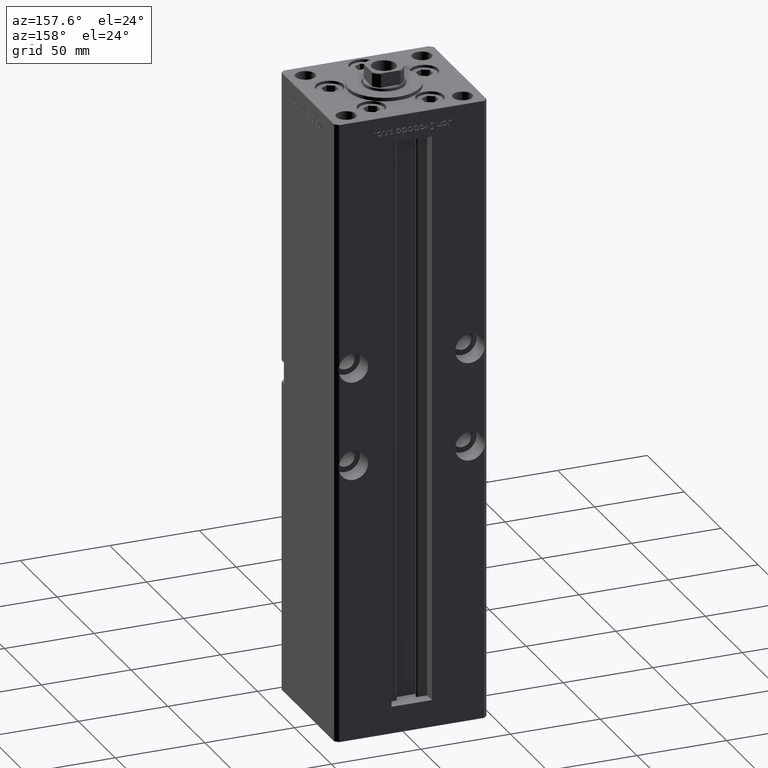
[diagram: clean part render]
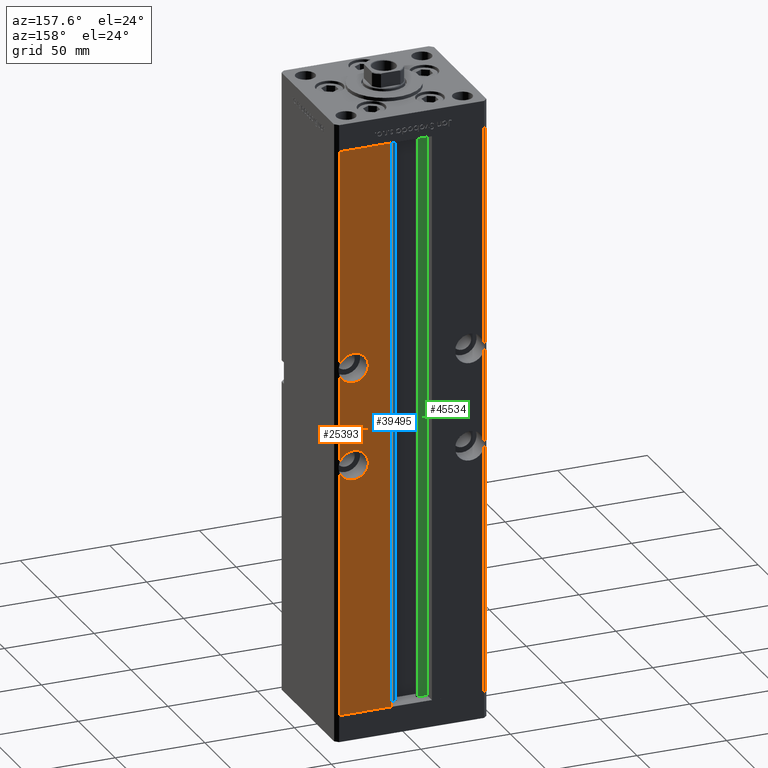
[diagram: same view with three faces highlighted in distinct colors, each labeled with its STEP entity id]
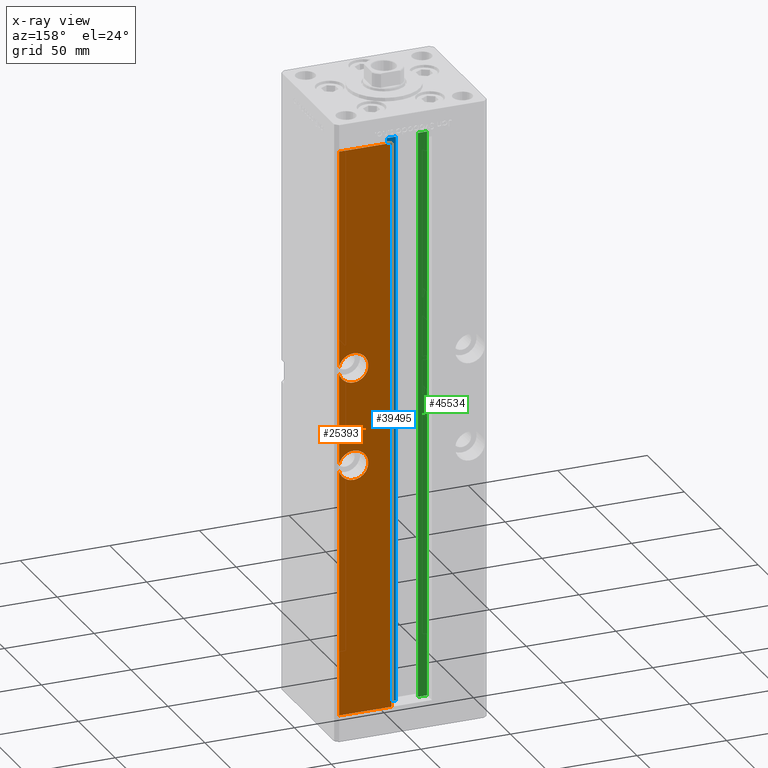
[diagram: x-ray of the same camera — body ghosted, the three highlighted faces saturated]
A machine part, auxiliary view with three faces highlighted in distinct colors.
The next image is the same camera in x-ray (body ghosted, the three faces saturated) — at least one of them is partly hidden behind the body in this view.
Their STEP definitions:

[orange] entity #25393 — the highlighted planar face has unit normal (0, -1, 0).
#88 = EDGE_CURVE ( 'NONE', #52766, #3457, #23973, .T. ) ;
#770 = EDGE_CURVE ( 'NONE', #23921, #33444, #3432, .T. ) ;
#933 = EDGE_LOOP ( 'NONE', ( #34920, #39845, #13368, #34785, #28625, #9192, #13048, #38928, #30793, #5878, #5217, #23658 ) ) ;
#2622 = DIRECTION ( 'NONE',  ( 0.000000000000000000, -0.000000000000000000, -1.000000000000000000 ) ) ;
#2764 = CARTESIAN_POINT ( 'NONE',  ( 32.50000000000000000, 37.50000000000000000, 131.7500000000000000 ) ) ;
#3199 = EDGE_CURVE ( 'NONE', #42530, #52766, #45557, .T. ) ;
#3432 = CIRCLE ( 'NONE', #48930, 8.250000000000007105 ) ;
#3457 = VERTEX_POINT ( 'NONE', #6711 ) ;
#3760 = EDGE_CURVE ( 'NONE', #28258, #13650, #52425, .T. ) ;
#4272 = DIRECTION ( 'NONE',  ( -0.000000000000000000, -0.000000000000000000, -1.000000000000000000 ) ) ;
#4932 = LINE ( 'NONE', #13511, #11381 ) ;
#4938 = LINE ( 'NONE', #24817, #51700 ) ;
#5217 = ORIENTED_EDGE ( 'NONE', *, *, #88, .F. ) ;
#5403 = CIRCLE ( 'NONE', #36258, 8.250000000000007105 ) ;
#5878 = ORIENTED_EDGE ( 'NONE', *, *, #37622, .F. ) ;
#6022 = DIRECTION ( 'NONE',  ( 0.000000000000000000, 0.000000000000000000, 1.000000000000000000 ) ) ;
#6516 = DIRECTION ( 'NONE',  ( 0.000000000000000000, 0.000000000000000000, 1.000000000000000000 ) ) ;
#6700 = VERTEX_POINT ( 'NONE', #14329 ) ;
#6711 = CARTESIAN_POINT ( 'NONE',  ( 32.50000000000000000, 37.50000000000000000, 203.2500000000000000 ) ) ;
#6770 = CARTESIAN_POINT ( 'NONE',  ( 32.50000000000000000, 37.50000000000000000, 195.0000000000000000 ) ) ;
#9192 = ORIENTED_EDGE ( 'NONE', *, *, #51777, .T. ) ;
#9885 = DIRECTION ( 'NONE',  ( 0.000000000000000000, 0.000000000000000000, -1.000000000000000000 ) ) ;
#10536 = DIRECTION ( 'NONE',  ( -0.000000000000000000, -0.000000000000000000, 1.000000000000000000 ) ) ;
#10802 = DIRECTION ( 'NONE',  ( 0.000000000000000000, 0.000000000000000000, 1.000000000000000000 ) ) ;
#11381 = VECTOR ( 'NONE', #29632, 1000.000000000000000 ) ;
#11489 = DIRECTION ( 'NONE',  ( 0.000000000000000000, 1.000000000000000000, -0.000000000000000000 ) ) ;
#12009 = AXIS2_PLACEMENT_3D ( 'NONE', #27861, #40482, #2622 ) ;
#12413 = EDGE_CURVE ( 'NONE', #33444, #28258, #37673, .T. ) ;
#13048 = ORIENTED_EDGE ( 'NONE', *, *, #18962, .T. ) ;
#13368 = ORIENTED_EDGE ( 'NONE', *, *, #12413, .F. ) ;
#13409 = DIRECTION ( 'NONE',  ( 0.000000000000000000, 1.000000000000000000, -0.000000000000000000 ) ) ;
#13511 = CARTESIAN_POINT ( 'NONE',  ( -11.24999999999999822, 37.50000000000000000, 318.5000000000000000 ) ) ;
#13650 = VERTEX_POINT ( 'NONE', #37074 ) ;
#13774 = AXIS2_PLACEMENT_3D ( 'NONE', #40769, #11489, #32429 ) ;
#13971 = CARTESIAN_POINT ( 'NONE',  ( 32.50000000000000000, 37.50000000000000000, 148.2500000000000284 ) ) ;
#14329 = CARTESIAN_POINT ( 'NONE',  ( 40.50000000000000711, 37.50000000000000000, 0.000000000000000000 ) ) ;
#14568 = LINE ( 'NONE', #30941, #51292 ) ;
#15828 = CARTESIAN_POINT ( 'NONE',  ( 11.24999999999999112, 37.50000000000000000, 318.5000000000000000 ) ) ;
#15902 = CARTESIAN_POINT ( 'NONE',  ( 40.50000000000000711, 37.50000000000000000, 192.9844355629253414 ) ) ;
#18962 = EDGE_CURVE ( 'NONE', #28484, #37370, #14568, .T. ) ;
#19155 = LINE ( 'NONE', #51679, #37061 ) ;
#20379 = CARTESIAN_POINT ( 'NONE',  ( 40.50000000000000711, 37.50000000000000000, 318.5000000000000000 ) ) ;
#21314 = DIRECTION ( 'NONE',  ( -0.000000000000000000, -0.000000000000000000, -1.000000000000000000 ) ) ;
#23658 = ORIENTED_EDGE ( 'NONE', *, *, #3199, .F. ) ;
#23921 = VERTEX_POINT ( 'NONE', #26645 ) ;
#23973 = CIRCLE ( 'NONE', #34235, 8.250000000000007105 ) ;
#24421 = CARTESIAN_POINT ( 'NONE',  ( 40.50000000000000711, 37.50000000000000000, 318.5000000000000000 ) ) ;
#24817 = CARTESIAN_POINT ( 'NONE',  ( 40.50000000000000711, 37.50000000000000000, 318.5000000000000000 ) ) ;
#25393 = ADVANCED_FACE ( 'NONE', ( #44263 ), #31880, .F. ) ;
#25874 = VECTOR ( 'NONE', #4272, 1000.000000000000000 ) ;
#26022 = CARTESIAN_POINT ( 'NONE',  ( 32.50000000000000000, 37.50000000000000000, 140.0000000000000000 ) ) ;
#26645 = CARTESIAN_POINT ( 'NONE',  ( 40.50000000000000711, 37.50000000000000000, 137.9844355629254267 ) ) ;
#26834 = DIRECTION ( 'NONE',  ( 0.000000000000000000, 1.000000000000000000, -0.000000000000000000 ) ) ;
#27500 = AXIS2_PLACEMENT_3D ( 'NONE', #6770, #35765, #6516 ) ;
#27861 = CARTESIAN_POINT ( 'NONE',  ( -11.24999999999999822, 37.50000000000000000, 318.5000000000000000 ) ) ;
#28258 = VERTEX_POINT ( 'NONE', #13971 ) ;
#28304 = EDGE_CURVE ( 'NONE', #42530, #13650, #52657, .T. ) ;
#28484 = VERTEX_POINT ( 'NONE', #41344 ) ;
#28625 = ORIENTED_EDGE ( 'NONE', *, *, #34889, .T. ) ;
#29632 = DIRECTION ( 'NONE',  ( 1.000000000000000000, 0.000000000000000000, 0.000000000000000000 ) ) ;
#29866 = CARTESIAN_POINT ( 'NONE',  ( 32.50000000000000000, 37.50000000000000000, 186.7500000000000000 ) ) ;
#30793 = ORIENTED_EDGE ( 'NONE', *, *, #36346, .T. ) ;
#30941 = CARTESIAN_POINT ( 'NONE',  ( 11.24999999999999822, 37.50000000000000000, 0.000000000000000000 ) ) ;
#31112 = CARTESIAN_POINT ( 'NONE',  ( 32.50000000000000000, 37.50000000000000000, 140.0000000000000000 ) ) ;
#31263 = CARTESIAN_POINT ( 'NONE',  ( 32.50000000000000000, 37.50000000000000000, 195.0000000000000000 ) ) ;
#31651 = CARTESIAN_POINT ( 'NONE',  ( 40.50000000000000711, 37.50000000000000000, 318.5000000000000000 ) ) ;
#31880 = PLANE ( 'NONE',  #12009 ) ;
#32429 = DIRECTION ( 'NONE',  ( 0.000000000000000000, 0.000000000000000000, -1.000000000000000000 ) ) ;
#33444 = VERTEX_POINT ( 'NONE', #2764 ) ;
#34235 = AXIS2_PLACEMENT_3D ( 'NONE', #47632, #39536, #10802 ) ;
#34785 = ORIENTED_EDGE ( 'NONE', *, *, #770, .F. ) ;
#34889 = EDGE_CURVE ( 'NONE', #23921, #6700, #48872, .T. ) ;
#34920 = ORIENTED_EDGE ( 'NONE', *, *, #28304, .T. ) ;
#35578 = VERTEX_POINT ( 'NONE', #24421 ) ;
#35765 = DIRECTION ( 'NONE',  ( 0.000000000000000000, 1.000000000000000000, 0.000000000000000000 ) ) ;
#36222 = DIRECTION ( 'NONE',  ( -0.000000000000000000, -0.000000000000000000, -1.000000000000000000 ) ) ;
#36258 = AXIS2_PLACEMENT_3D ( 'NONE', #31263, #43372, #6022 ) ;
#36346 = EDGE_CURVE ( 'NONE', #35578, #50103, #4938, .T. ) ;
#37061 = VECTOR ( 'NONE', #39557, 1000.000000000000000 ) ;
#37074 = CARTESIAN_POINT ( 'NONE',  ( 40.50000000000000711, 37.50000000000000000, 142.0155644370746018 ) ) ;
#37370 = VERTEX_POINT ( 'NONE', #15828 ) ;
#37622 = EDGE_CURVE ( 'NONE', #3457, #50103, #5403, .T. ) ;
#37673 = CIRCLE ( 'NONE', #42893, 8.250000000000007105 ) ;
#37927 = EDGE_CURVE ( 'NONE', #37370, #35578, #4932, .T. ) ;
#38928 = ORIENTED_EDGE ( 'NONE', *, *, #37927, .T. ) ;
#39536 = DIRECTION ( 'NONE',  ( 0.000000000000000000, 1.000000000000000000, 0.000000000000000000 ) ) ;
#39557 = DIRECTION ( 'NONE',  ( -1.000000000000000000, 0.000000000000000000, 0.000000000000000000 ) ) ;
#39845 = ORIENTED_EDGE ( 'NONE', *, *, #3760, .F. ) ;
#40482 = DIRECTION ( 'NONE',  ( 0.000000000000000000, -1.000000000000000000, 0.000000000000000000 ) ) ;
#40769 = CARTESIAN_POINT ( 'NONE',  ( 32.50000000000000000, 37.50000000000000000, 140.0000000000000000 ) ) ;
#41344 = CARTESIAN_POINT ( 'NONE',  ( 11.24999999999999822, 37.50000000000000000, 0.000000000000000000 ) ) ;
#42530 = VERTEX_POINT ( 'NONE', #15902 ) ;
#42893 = AXIS2_PLACEMENT_3D ( 'NONE', #31112, #26834, #47003 ) ;
#43372 = DIRECTION ( 'NONE',  ( 0.000000000000000000, 1.000000000000000000, 0.000000000000000000 ) ) ;
#44263 = FACE_OUTER_BOUND ( 'NONE', #933, .T. ) ;
#44670 = CARTESIAN_POINT ( 'NONE',  ( 40.50000000000000711, 37.50000000000000000, 197.0155644370746586 ) ) ;
#45557 = CIRCLE ( 'NONE', #27500, 8.250000000000007105 ) ;
#47003 = DIRECTION ( 'NONE',  ( 0.000000000000000000, 0.000000000000000000, -1.000000000000000000 ) ) ;
#47632 = CARTESIAN_POINT ( 'NONE',  ( 32.50000000000000000, 37.50000000000000000, 195.0000000000000000 ) ) ;
#48872 = LINE ( 'NONE', #20379, #25874 ) ;
#48930 = AXIS2_PLACEMENT_3D ( 'NONE', #26022, #13409, #9885 ) ;
#49834 = VECTOR ( 'NONE', #36222, 1000.000000000000000 ) ;
#50103 = VERTEX_POINT ( 'NONE', #44670 ) ;
#51292 = VECTOR ( 'NONE', #10536, 1000.000000000000000 ) ;
#51679 = CARTESIAN_POINT ( 'NONE',  ( -11.24999999999999822, 37.50000000000000000, 0.000000000000000000 ) ) ;
#51700 = VECTOR ( 'NONE', #21314, 1000.000000000000000 ) ;
#51777 = EDGE_CURVE ( 'NONE', #6700, #28484, #19155, .T. ) ;
#52425 = CIRCLE ( 'NONE', #13774, 8.250000000000007105 ) ;
#52657 = LINE ( 'NONE', #31651, #49834 ) ;
#52766 = VERTEX_POINT ( 'NONE', #29866 ) ;

[blue] entity #39495 — the highlighted planar face has unit normal (0, -1, 0).
#3191 = EDGE_CURVE ( 'NONE', #34419, #32212, #15363, .T. ) ;
#5565 = ORIENTED_EDGE ( 'NONE', *, *, #3191, .F. ) ;
#6062 = VECTOR ( 'NONE', #35510, 1000.000000000000000 ) ;
#8620 = VECTOR ( 'NONE', #36228, 1000.000000000000000 ) ;
#10305 = VERTEX_POINT ( 'NONE', #48322 ) ;
#11451 = AXIS2_PLACEMENT_3D ( 'NONE', #15506, #39680, #52880 ) ;
#15238 = FACE_OUTER_BOUND ( 'NONE', #25051, .T. ) ;
#15363 = LINE ( 'NONE', #36027, #6062 ) ;
#15506 = CARTESIAN_POINT ( 'NONE',  ( 6.183333333333997928, 31.00000000000000000, 0.000000000000000000 ) ) ;
#15616 = VECTOR ( 'NONE', #49979, 1000.000000000000000 ) ;
#16104 = CARTESIAN_POINT ( 'NONE',  ( 0.000000000000000000, 31.00000000000000000, 318.5000000000000000 ) ) ;
#16226 = VECTOR ( 'NONE', #37058, 1000.000000000000000 ) ;
#16930 = CARTESIAN_POINT ( 'NONE',  ( 11.24999999999999822, 31.00000000000000000, 0.000000000000000000 ) ) ;
#19846 = LINE ( 'NONE', #16104, #8620 ) ;
#22029 = CARTESIAN_POINT ( 'NONE',  ( 6.183333333333997928, 31.00000000000000000, 0.000000000000000000 ) ) ;
#22763 = ORIENTED_EDGE ( 'NONE', *, *, #23124, .T. ) ;
#23124 = EDGE_CURVE ( 'NONE', #34419, #10305, #31956, .T. ) ;
#25051 = EDGE_LOOP ( 'NONE', ( #27889, #5565, #22763, #27975 ) ) ;
#27889 = ORIENTED_EDGE ( 'NONE', *, *, #52094, .F. ) ;
#27975 = ORIENTED_EDGE ( 'NONE', *, *, #31661, .F. ) ;
#31661 = EDGE_CURVE ( 'NONE', #42762, #10305, #19846, .T. ) ;
#31956 = LINE ( 'NONE', #48372, #16226 ) ;
#32212 = VERTEX_POINT ( 'NONE', #38023 ) ;
#34419 = VERTEX_POINT ( 'NONE', #22029 ) ;
#35510 = DIRECTION ( 'NONE',  ( 1.000000000000000000, 0.000000000000000000, 0.000000000000000000 ) ) ;
#36027 = CARTESIAN_POINT ( 'NONE',  ( 6.183333333333997928, 31.00000000000000000, 0.000000000000000000 ) ) ;
#36228 = DIRECTION ( 'NONE',  ( -1.000000000000000000, 0.000000000000000000, 0.000000000000000000 ) ) ;
#36448 = PLANE ( 'NONE',  #11451 ) ;
#37058 = DIRECTION ( 'NONE',  ( -0.000000000000000000, -0.000000000000000000, 1.000000000000000000 ) ) ;
#38023 = CARTESIAN_POINT ( 'NONE',  ( 11.24999999999999822, 31.00000000000000000, 0.000000000000000000 ) ) ;
#39495 = ADVANCED_FACE ( 'NONE', ( #15238 ), #36448, .F. ) ;
#39680 = DIRECTION ( 'NONE',  ( 0.000000000000000000, -1.000000000000000000, 0.000000000000000000 ) ) ;
#42762 = VERTEX_POINT ( 'NONE', #43776 ) ;
#43776 = CARTESIAN_POINT ( 'NONE',  ( 11.24999999999999822, 31.00000000000000000, 318.5000000000000000 ) ) ;
#46467 = LINE ( 'NONE', #16930, #15616 ) ;
#48322 = CARTESIAN_POINT ( 'NONE',  ( 6.183333333333997928, 31.00000000000000000, 318.5000000000000000 ) ) ;
#48372 = CARTESIAN_POINT ( 'NONE',  ( 6.183333333333997928, 31.00000000000000000, 0.000000000000000000 ) ) ;
#49979 = DIRECTION ( 'NONE',  ( -0.000000000000000000, -0.000000000000000000, 1.000000000000000000 ) ) ;
#52094 = EDGE_CURVE ( 'NONE', #32212, #42762, #46467, .T. ) ;
#52880 = DIRECTION ( 'NONE',  ( 0.000000000000000000, -0.000000000000000000, -1.000000000000000000 ) ) ;

[green] entity #45534 — the highlighted planar face has unit normal (0, -1, 0).
#3062 = AXIS2_PLACEMENT_3D ( 'NONE', #34166, #46559, #5697 ) ;
#3196 = CARTESIAN_POINT ( 'NONE',  ( 0.000000000000000000, 31.00000000000000000, 318.5000000000000000 ) ) ;
#4084 = LINE ( 'NONE', #20733, #45884 ) ;
#5697 = DIRECTION ( 'NONE',  ( 0.000000000000000000, 0.000000000000000000, -1.000000000000000000 ) ) ;
#6746 = FACE_OUTER_BOUND ( 'NONE', #35206, .T. ) ;
#10725 = LINE ( 'NONE', #31397, #22462 ) ;
#13661 = VERTEX_POINT ( 'NONE', #42163 ) ;
#15288 = DIRECTION ( 'NONE',  ( -0.000000000000000000, -0.000000000000000000, 1.000000000000000000 ) ) ;
#16354 = CARTESIAN_POINT ( 'NONE',  ( -11.24999999999999822, 31.00000000000000000, 0.000000000000000000 ) ) ;
#16887 = DIRECTION ( 'NONE',  ( -0.000000000000000000, -0.000000000000000000, 1.000000000000000000 ) ) ;
#20733 = CARTESIAN_POINT ( 'NONE',  ( -6.183333333333997928, 31.00000000000000000, 0.000000000000000000 ) ) ;
#22462 = VECTOR ( 'NONE', #15288, 1000.000000000000000 ) ;
#24866 = ORIENTED_EDGE ( 'NONE', *, *, #27493, .F. ) ;
#24977 = VECTOR ( 'NONE', #35938, 1000.000000000000000 ) ;
#27493 = EDGE_CURVE ( 'NONE', #49251, #41873, #52101, .T. ) ;
#27540 = EDGE_CURVE ( 'NONE', #13661, #41873, #41338, .T. ) ;
#28012 = ORIENTED_EDGE ( 'NONE', *, *, #27540, .T. ) ;
#28531 = ORIENTED_EDGE ( 'NONE', *, *, #31557, .F. ) ;
#31397 = CARTESIAN_POINT ( 'NONE',  ( -6.183333333333997928, 31.00000000000000000, 0.000000000000000000 ) ) ;
#31557 = EDGE_CURVE ( 'NONE', #48559, #49251, #10725, .T. ) ;
#34166 = CARTESIAN_POINT ( 'NONE',  ( -6.183333333333997928, 31.00000000000000000, 0.000000000000000000 ) ) ;
#34970 = CARTESIAN_POINT ( 'NONE',  ( -6.183333333333997928, 31.00000000000000000, 318.5000000000000000 ) ) ;
#35206 = EDGE_LOOP ( 'NONE', ( #28531, #51219, #28012, #24866 ) ) ;
#35938 = DIRECTION ( 'NONE',  ( -1.000000000000000000, 0.000000000000000000, 0.000000000000000000 ) ) ;
#37237 = CARTESIAN_POINT ( 'NONE',  ( -11.24999999999999822, 31.00000000000000000, 318.5000000000000000 ) ) ;
#39513 = PLANE ( 'NONE',  #3062 ) ;
#40061 = CARTESIAN_POINT ( 'NONE',  ( -6.183333333333997928, 31.00000000000000000, 0.000000000000000000 ) ) ;
#41338 = LINE ( 'NONE', #16354, #50705 ) ;
#41873 = VERTEX_POINT ( 'NONE', #37237 ) ;
#42163 = CARTESIAN_POINT ( 'NONE',  ( -11.24999999999999822, 31.00000000000000000, 0.000000000000000000 ) ) ;
#42505 = EDGE_CURVE ( 'NONE', #13661, #48559, #4084, .T. ) ;
#45534 = ADVANCED_FACE ( 'NONE', ( #6746 ), #39513, .F. ) ;
#45884 = VECTOR ( 'NONE', #52458, 1000.000000000000000 ) ;
#46559 = DIRECTION ( 'NONE',  ( 0.000000000000000000, -1.000000000000000000, -0.000000000000000000 ) ) ;
#48559 = VERTEX_POINT ( 'NONE', #40061 ) ;
#49251 = VERTEX_POINT ( 'NONE', #34970 ) ;
#50705 = VECTOR ( 'NONE', #16887, 1000.000000000000000 ) ;
#51219 = ORIENTED_EDGE ( 'NONE', *, *, #42505, .F. ) ;
#52101 = LINE ( 'NONE', #3196, #24977 ) ;
#52458 = DIRECTION ( 'NONE',  ( 1.000000000000000000, -0.000000000000000000, -0.000000000000000000 ) ) ;